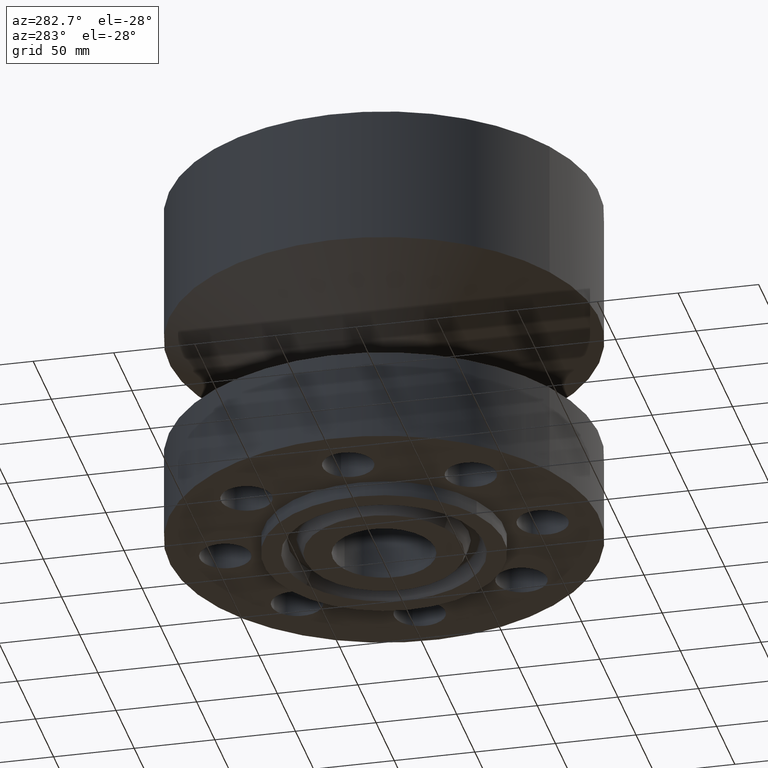
[diagram: clean part render]
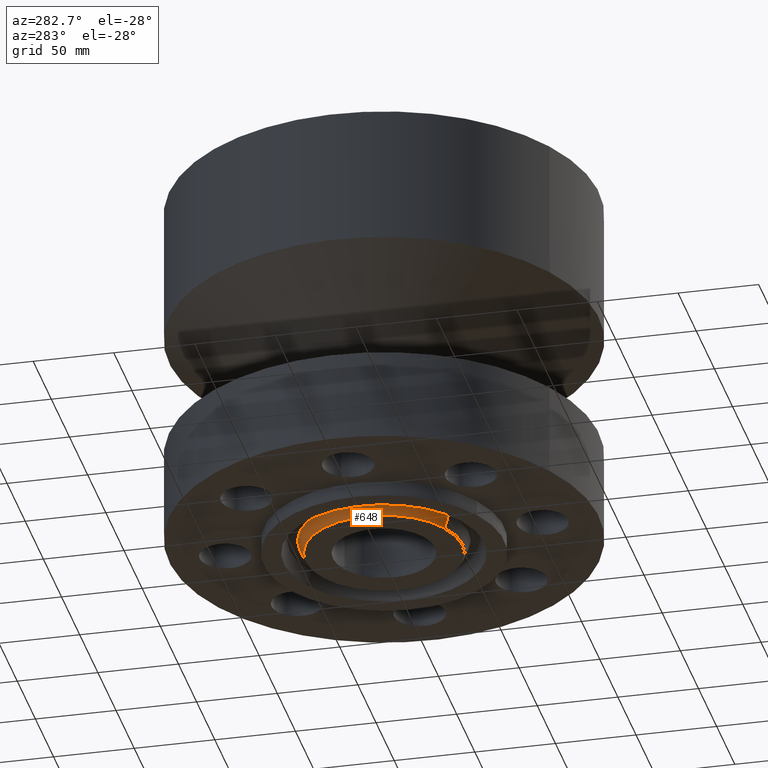
[diagram: same view with one face highlighted and labeled with its STEP entity id]
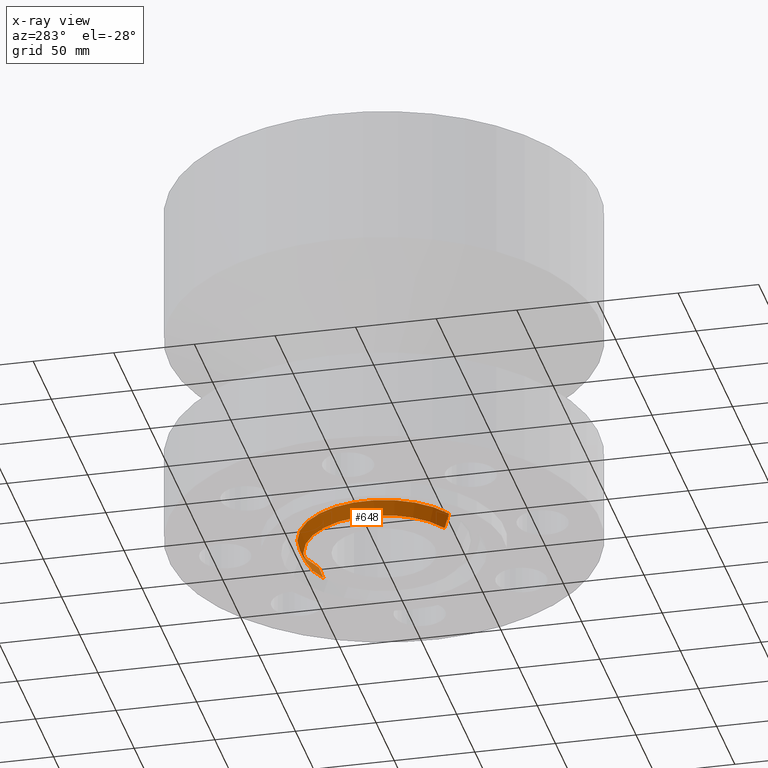
[diagram: x-ray of the same camera — body ghosted, the highlighted face saturated]
A machine part, auxiliary view. The second image highlights one B-rep face of the part: STEP entity #648.
The next image is the same camera in x-ray: the body ghosted, the highlighted face saturated — about 0% of this face is hidden behind the body in this view.
In plain terms, the highlighted conical surface has half-angle 23 deg.
Its self-contained STEP definition (entity closure, byte-faithful):
#597=AXIS2_PLACEMENT_3D('Circle Axis2P3D',#595,#596,$) ;
#621=AXIS2_PLACEMENT_3D('Cone Axis2P3D',#618,#619,#620) ;
#632=AXIS2_PLACEMENT_3D('Circle Axis2P3D',#630,#631,$) ;
#595=CARTESIAN_POINT('Axis2P3D Location',(0.,0.,-0.375000000001)) ;
#599=CARTESIAN_POINT('Vertex',(-0.921455885201,-1.68671368396,-0.375000000002)) ;
#601=CARTESIAN_POINT('Vertex',(0.921455885201,1.68671368396,-0.375000000002)) ;
#618=CARTESIAN_POINT('Axis2P3D Location',(0.,0.,-0.375000000002)) ;
#623=CARTESIAN_POINT('Line Origine',(-0.955707253991,-1.74941039398,-0.206691969453)) ;
#627=CARTESIAN_POINT('Vertex',(-0.989958622781,-1.812107104,-0.0383839389053)) ;
#630=CARTESIAN_POINT('Axis2P3D Location',(0.,0.,-0.0383839389053)) ;
#634=CARTESIAN_POINT('Vertex',(0.989958622781,1.812107104,-0.0383839389053)) ;
#637=CARTESIAN_POINT('Line Origine',(0.955707253991,1.74941039398,-0.206691969453)) ;
#596=DIRECTION('Axis2P3D Direction',(0.,0.,-0.0393700787402)) ;
#619=DIRECTION('Axis2P3D Direction',(-0.,-0.,0.0393700787402)) ;
#620=DIRECTION('Axis2P3D XDirection',(-0.0188750212049,-0.0345504945626,0.)) ;
#624=DIRECTION('Vector Direction',(-0.00737505833565,-0.0134999537303,0.0362403485611)) ;
#631=DIRECTION('Axis2P3D Direction',(-0.,0.,0.0393700787402)) ;
#638=DIRECTION('Vector Direction',(0.00737505833565,0.0134999537303,0.0362403485611)) ;
#625=VECTOR('Line Direction',#624,0.0393700787402) ;
#639=VECTOR('Line Direction',#638,0.0393700787402) ;
#643=ORIENTED_EDGE('',*,*,#603,.F.) ;
#644=ORIENTED_EDGE('',*,*,#629,.T.) ;
#645=ORIENTED_EDGE('',*,*,#636,.T.) ;
#646=ORIENTED_EDGE('',*,*,#641,.F.) ;
#648=ADVANCED_FACE('PartBody',(#647),#622,.T.) ;
#598=CIRCLE('generated circle',#597,1.92200000001) ;
#633=CIRCLE('generated circle',#632,2.06488504067) ;
#622=CONICAL_SURFACE('Cone',#621,1.92200000001,0.401425727959) ;
#603=EDGE_CURVE('',#600,#602,#598,.T.) ;
#629=EDGE_CURVE('',#600,#628,#626,.T.) ;
#636=EDGE_CURVE('',#628,#635,#633,.F.) ;
#641=EDGE_CURVE('',#602,#635,#640,.T.) ;
#642=EDGE_LOOP('',(#643,#644,#645,#646)) ;
#647=FACE_OUTER_BOUND('',#642,.T.) ;
#626=LINE('Line',#623,#625) ;
#640=LINE('Line',#637,#639) ;
#600=VERTEX_POINT('',#599) ;
#602=VERTEX_POINT('',#601) ;
#628=VERTEX_POINT('',#627) ;
#635=VERTEX_POINT('',#634) ;